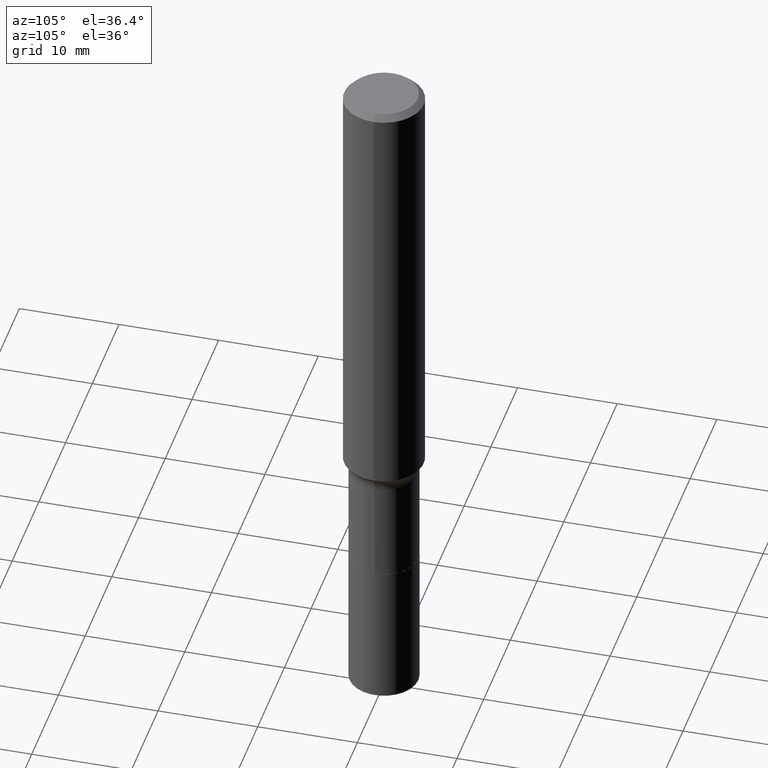
[diagram: clean part render]
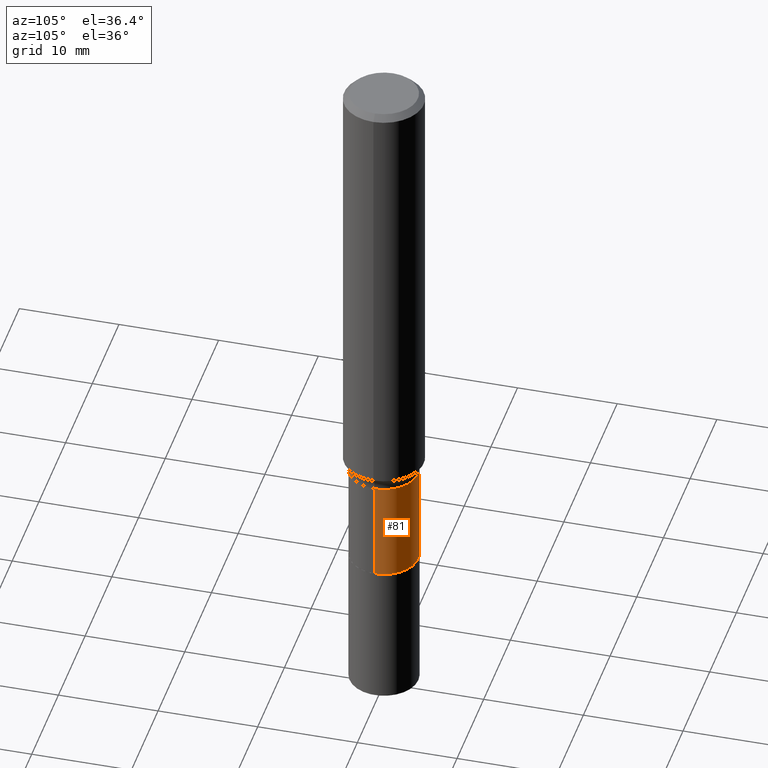
[diagram: same view with one face highlighted and labeled with its STEP entity id]
A machine part, auxiliary view. The second image highlights one B-rep face of the part: STEP entity #81.
In plain terms, the highlighted cylindrical surface (edge-blend (fillet) strip) has radius 3.4544 mm, axis along (-0, 0, 1).
Its self-contained STEP definition (entity closure, byte-faithful):
#3 = VERTEX_POINT ( 'NONE', #370 ) ;
#18 = CARTESIAN_POINT ( 'NONE',  ( 5.332100185006071663E-29, -7.612825911213594108E-15, -2.180400000000000116 ) ) ;
#30 = CARTESIAN_POINT ( 'NONE',  ( -0.1360000000000000098, 9.663381206337363222E-16, -6.689751722746672110E-30 ) ) ;
#59 = CARTESIAN_POINT ( 'NONE',  ( 0.000000000000000000, 0.000000000000000000, 0.000000000000000000 ) ) ;
#63 = CIRCLE ( 'NONE', #412, 0.1359999999999999820 ) ;
#70 = CIRCLE ( 'NONE', #421, 0.1360000000000000375 ) ;
#81 = ADVANCED_FACE ( 'NONE', ( #239 ), #376, .T. ) ;
#83 = DIRECTION ( 'NONE',  ( -2.445468806185136597E-29, 3.491481338843145583E-15, 1.000000000000000000 ) ) ;
#91 = DIRECTION ( 'NONE',  ( 1.000000000000000000, -6.982962677686265922E-15, 0.000000000000000000 ) ) ;
#135 = LINE ( 'NONE', #210, #256 ) ;
#154 = ORIENTED_EDGE ( 'NONE', *, *, #457, .T. ) ;
#161 = EDGE_LOOP ( 'NONE', ( #258, #154, #329, #274 ) ) ;
#165 = CARTESIAN_POINT ( 'NONE',  ( 0.1359999999999999820, -7.157885892762328978E-15, -1.778099999999999792 ) ) ;
#172 = DIRECTION ( 'NONE',  ( -2.445468806185136597E-29, 3.491481338843145583E-15, 1.000000000000000000 ) ) ;
#210 = CARTESIAN_POINT ( 'NONE',  ( 0.1360000000000000098, -9.496829241653322569E-16, 6.631600415082472006E-30 ) ) ;
#219 = EDGE_CURVE ( 'NONE', #254, #443, #63, .T. ) ;
#225 = AXIS2_PLACEMENT_3D ( 'NONE', #59, #172, #348 ) ;
#230 = CARTESIAN_POINT ( 'NONE',  ( 4.348288084277790698E-29, -6.208202968596996327E-15, -1.778099999999999792 ) ) ;
#239 = FACE_OUTER_BOUND ( 'NONE', #161, .T. ) ;
#242 = DIRECTION ( 'NONE',  ( -2.445468806185136877E-29, 3.491481338843145188E-15, 1.000000000000000000 ) ) ;
#249 = EDGE_CURVE ( 'NONE', #296, #3, #70, .T. ) ;
#254 = VERTEX_POINT ( 'NONE', #165 ) ;
#256 = VECTOR ( 'NONE', #242, 39.37007874015748143 ) ;
#258 = ORIENTED_EDGE ( 'NONE', *, *, #249, .T. ) ;
#274 = ORIENTED_EDGE ( 'NONE', *, *, #461, .F. ) ;
#296 = VERTEX_POINT ( 'NONE', #366 ) ;
#299 = DIRECTION ( 'NONE',  ( 1.000000000000000000, -6.982962677686269077E-15, 0.000000000000000000 ) ) ;
#303 = DIRECTION ( 'NONE',  ( -2.445468806185136597E-29, 3.491481338843145583E-15, 1.000000000000000000 ) ) ;
#316 = CARTESIAN_POINT ( 'NONE',  ( -0.1359999999999999820, -5.944176319271559684E-15, -1.778099999999999792 ) ) ;
#329 = ORIENTED_EDGE ( 'NONE', *, *, #219, .F. ) ;
#348 = DIRECTION ( 'NONE',  ( 1.000000000000000000, -6.982962677686265922E-15, 4.876176775795934672E-29 ) ) ;
#366 = CARTESIAN_POINT ( 'NONE',  ( 0.1360000000000000375, -8.562508835378926759E-15, -2.180400000000000116 ) ) ;
#370 = CARTESIAN_POINT ( 'NONE',  ( -0.1360000000000000375, -5.944176319271559684E-15, -2.180400000000000116 ) ) ;
#372 = VECTOR ( 'NONE', #418, 39.37007874015748143 ) ;
#376 = CYLINDRICAL_SURFACE ( 'NONE', #225, 0.1360000000000000098 ) ;
#412 = AXIS2_PLACEMENT_3D ( 'NONE', #230, #303, #299 ) ;
#418 = DIRECTION ( 'NONE',  ( -2.445468806185136877E-29, 3.491481338843145188E-15, 1.000000000000000000 ) ) ;
#421 = AXIS2_PLACEMENT_3D ( 'NONE', #18, #83, #91 ) ;
#443 = VERTEX_POINT ( 'NONE', #316 ) ;
#454 = LINE ( 'NONE', #30, #372 ) ;
#457 = EDGE_CURVE ( 'NONE', #3, #443, #454, .T. ) ;
#461 = EDGE_CURVE ( 'NONE', #296, #254, #135, .T. ) ;